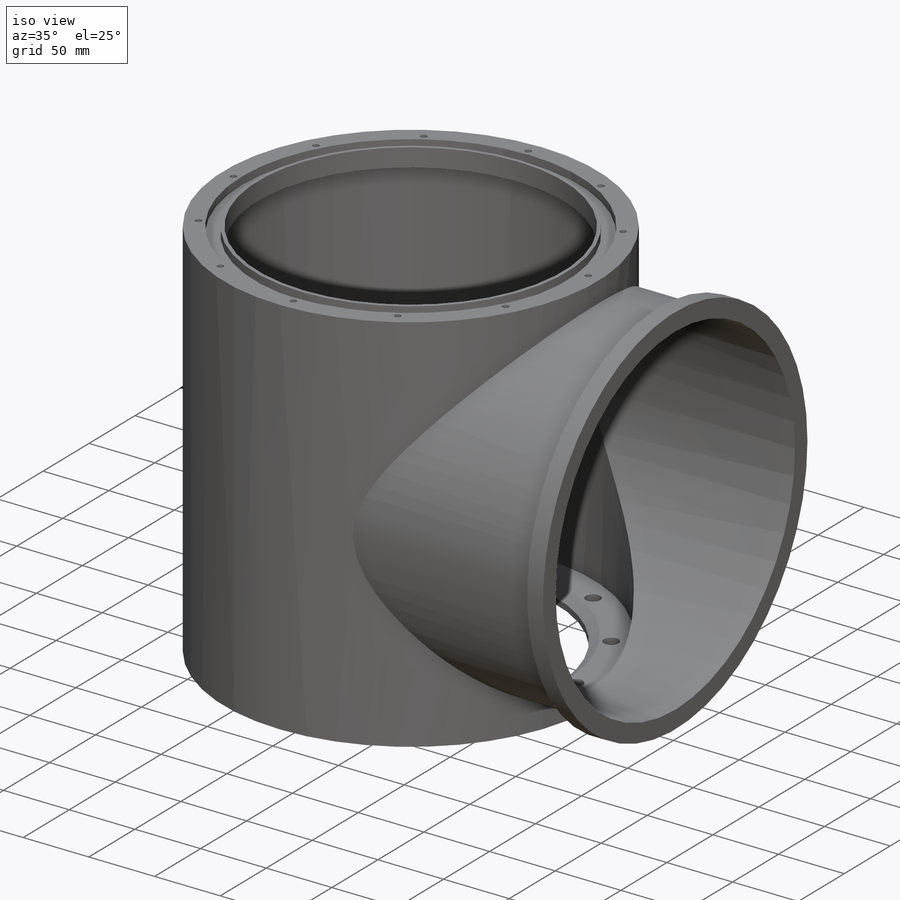
[diagram: iso view]
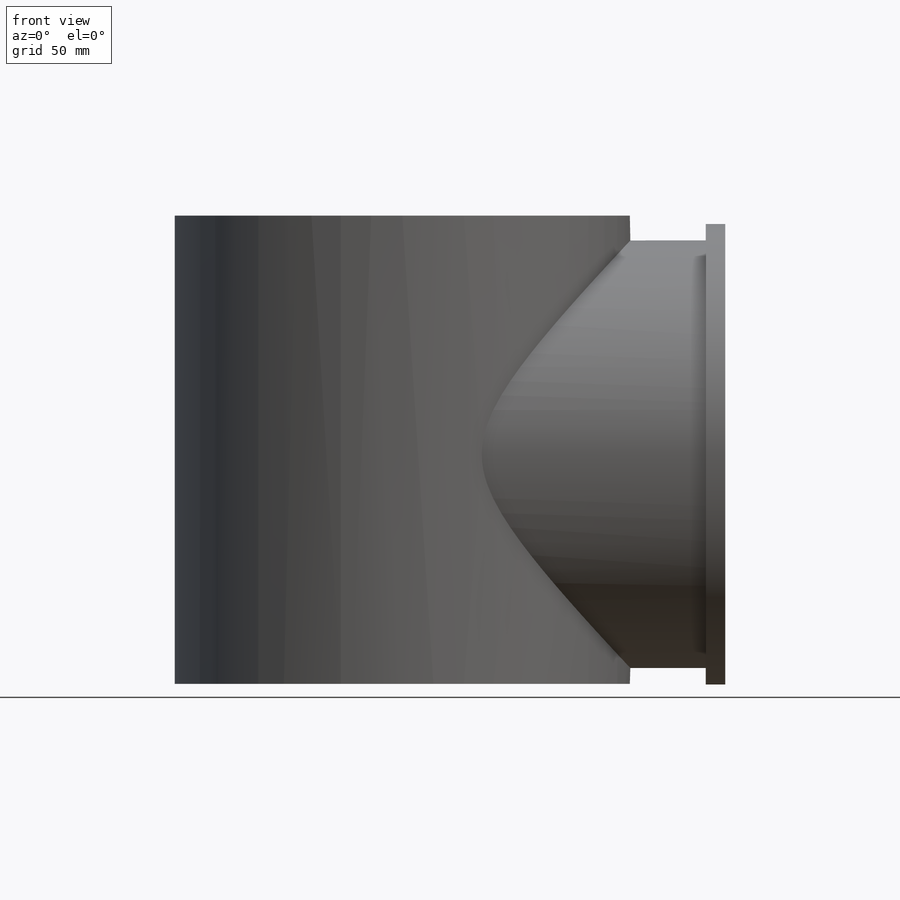
[diagram: front view]
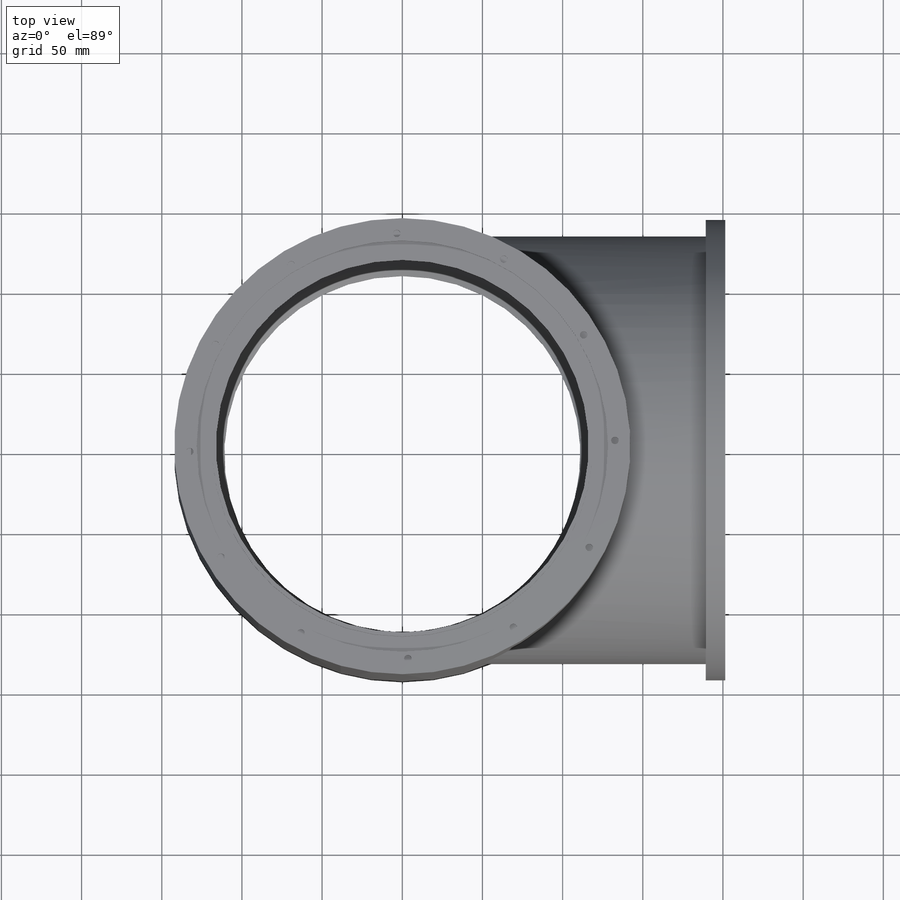
[diagram: top view]
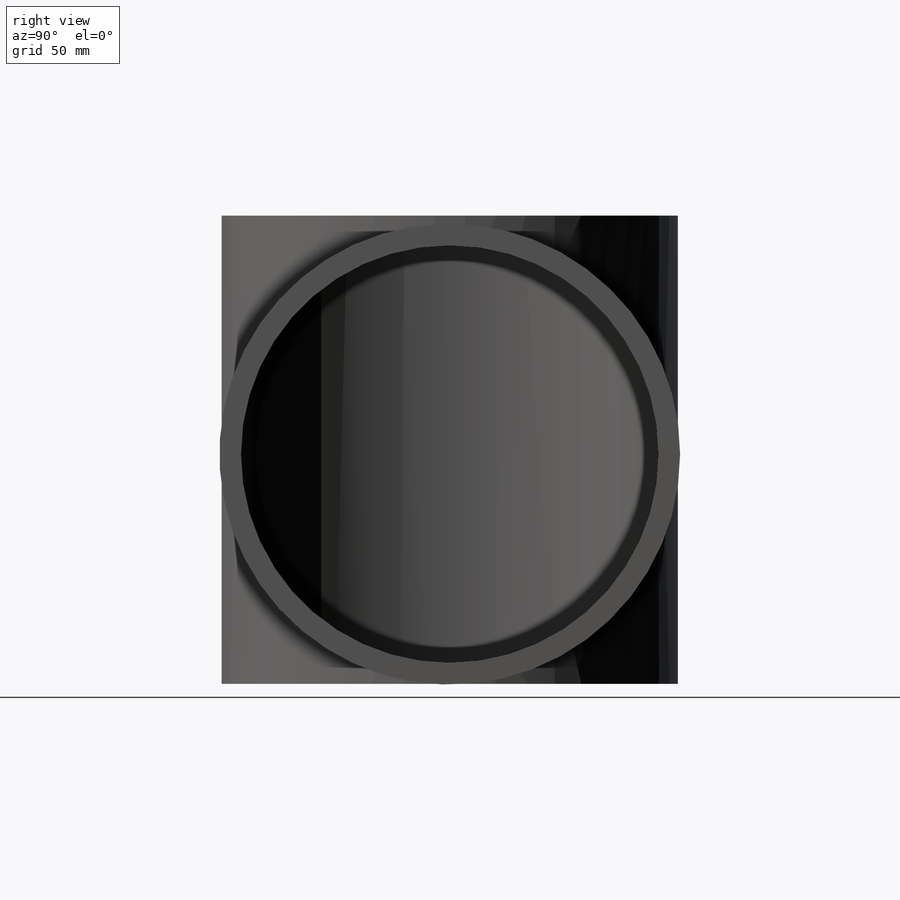
[diagram: right view]
SOLIDWORKS PART (.sldprt)
format: sldprt  version: not decoded by parser v0  size: 512,512 bytes
history: native  units: mm
features: sketch x15, extrude x5, cut_extrude x5, material x1, hole x1, cut_revolve x1, chamfer x1 (+13 scaffold rows collapsed)
feature tree (42):
  scaffold x13  (default folders/planes/origin — collapsed)
  material  "Material <not specified>"
  sketch  "Sketch1"  dims[D1=284.48mm D2=3.175mm D3=22.098mm]
  extrude  "Boss-Extrude1"  Depth=292.1mm
  sketch  "Sketch2"  dims[D1=260.35mm D3=266.6746mm D2=15.494mm]
  extrude  "Boss-Extrude2"  Depth=201.422mm
  cut_extrude  "Cut-Extrude1"  [1 undecoded]
  sketch  "Sketch1<3>"
  cut_extrude  "Cut-Extrude2"  [1 undecoded]
  sketch  "Sketch2<2>"
  sketch  "Sketch3"  dims[D1=287.3375mm]
  extrude  "Boss-Extrude3"  Depth=12.192mm
  sketch  "Sketch5"  dims[c1.D1=219.964mm c1.D2=5.9944mm c2.D1=27.94mm c2.D3=12.319mm c2.D5=75.5142mm c3.D3=12.319mm c3.D5=287.3375mm c4.D3=75.946mm c4.D5=~256.897766mm c4.D1=27.94mm c5.D5=5.5372mm c5.D4=12.0]
  extrude  "Boss-Extrude5"  Depth=11.43mm
  sketch  "Sketch4"  dims[c1.D2=~125.086772mm c1.D3=254.0mm c1.D4=10.287mm c1.D6=142.24mm c1.D7=76.2mm c2.D6=125.476mm c2.D4=68.834mm c2.D7=68.834mm c3.D6=1.5deg c3.D1=22.86mm c3.D7=2.54mm c3.D8=9.525mm c3.D5=12.0]
  extrude  "Boss-Extrude4"  Depth=13.8176mm
  cut_extrude  "Cut-Extrude3"  [1 undecoded]
  sketch  "Sketch4<3>"  dims[D1=7.62mm]
  cut_extrude  "Cut-Extrude4"  [1 undecoded]
  sketch  "Sketch4<4>"  dims[D1=5.7912mm]
  hole  "CBORE for M6 Hexagon Socket Head Cap Screw1"  Diameter=6.4mm Depth=11.83005mm
  sketch  "3DSketch4"
  sketch  "Sketch10"  dims[hole-wizard template sketch: 41 standard entries collapsed; hole parameters kept: c12.Thru Hole Dia.=6.4mm c12.Thru Hole Depth=~11.83005mm c12.C'Bore Dia.=11.0mm c12.C'Bore Depth=6.0mm]
  sketch  "Sketch7"  dims[c1.D1=1.27mm c1.D2=2.54mm c1.D3=1.27mm c1.D4=132.2832mm c1.D5=~7.469542mm c1.D6=~11.279542mm c2.D1=1.27mm c2.D2=132.1308mm c2.D4=2.54mm c2.D5=11.5316mm]
  cut_revolve  "Cut-Revolve1"  Angle=360deg
  chamfer  "Chamfer1"  Distance=5.08mm
  sketch  "3DSketch2"  dims[D1=13.462mm]
  sketch  "Sketch8"  dims[c1.D1=9.144mm c1.D2=9.144mm c1.D5=~11.17488mm c1.D6=91.44mm c1.D7=91.44mm c1.D8=1.27mm c2.D5=1.65deg]
  cut_extrude  "Cut-Extrude5"  [1 undecoded]
  sketch  "Sketch5<3>"  dims[D1=1.778mm]
decode coverage: 20 of 28 modeling features carry decoded parameters
note: ~ marks probable driven/reference dimensions
note: 5 parameter values undecoded
summary: no parameter record found for 5 features
note: suppression state not decoded; provenance and decode notes live in map.json
